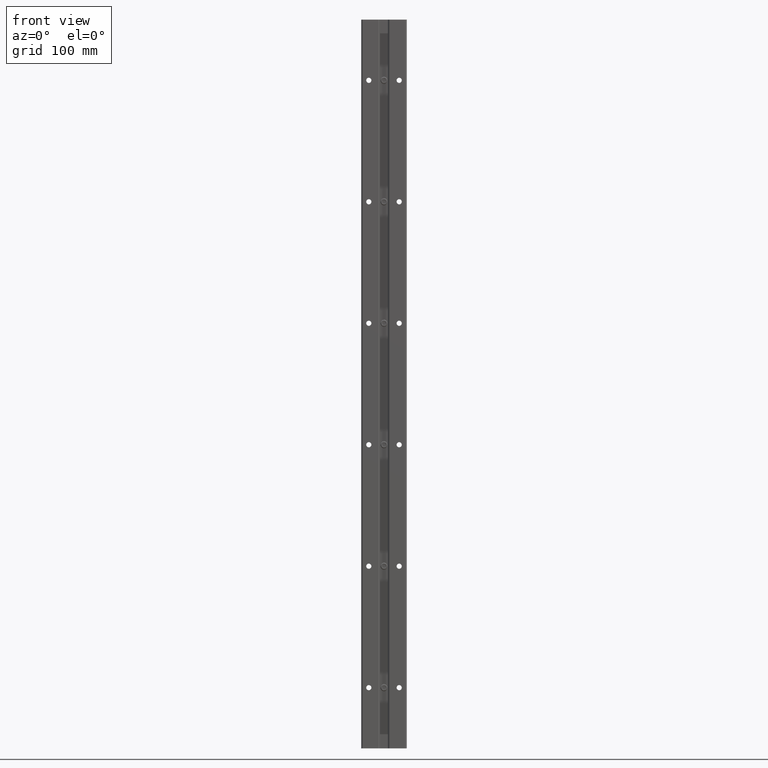
[diagram: clean part render]
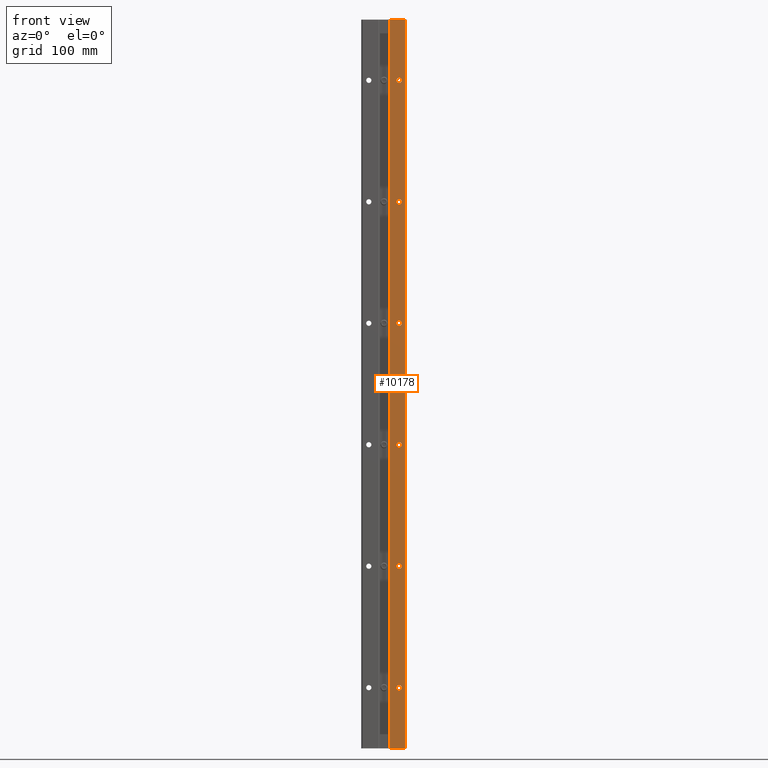
[diagram: same view with one face highlighted and labeled with its STEP entity id]
A machine part, front view. The second image highlights one B-rep face of the part: STEP entity #10178.
In plain terms, the highlighted planar face has unit normal (0, 1, 0).
Its self-contained STEP definition (entity closure, byte-faithful):
#1 = CIRCLE ( 'NONE', #2193, 0.08499999999999977018 ) ;
#10 = LINE ( 'NONE', #9737, #9622 ) ;
#162 = EDGE_CURVE ( 'NONE', #3149, #7738, #8929, .T. ) ;
#206 = ORIENTED_EDGE ( 'NONE', *, *, #7230, .T. ) ;
#217 = VECTOR ( 'NONE', #4765, 39.37007874015748143 ) ;
#227 = DIRECTION ( 'NONE',  ( -1.000000000000000000, 0.000000000000000000, 0.000000000000000000 ) ) ;
#417 = ORIENTED_EDGE ( 'NONE', *, *, #863, .T. ) ;
#542 = DIRECTION ( 'NONE',  ( 0.000000000000000000, 1.000000000000000000, 0.000000000000000000 ) ) ;
#607 = AXIS2_PLACEMENT_3D ( 'NONE', #9532, #9390, #11482 ) ;
#614 = EDGE_CURVE ( 'NONE', #5119, #6911, #9810, .T. ) ;
#631 = EDGE_LOOP ( 'NONE', ( #417, #9617 ) ) ;
#746 = FACE_BOUND ( 'NONE', #992, .T. ) ;
#863 = EDGE_CURVE ( 'NONE', #9808, #6351, #6385, .T. ) ;
#865 = VERTEX_POINT ( 'NONE', #1021 ) ;
#888 = CIRCLE ( 'NONE', #11783, 0.08500000000000086653 ) ;
#916 = CARTESIAN_POINT ( 'NONE',  ( 0.5000000000000000000, 0.000000000000000000, -2.084999999999999964 ) ) ;
#921 = CARTESIAN_POINT ( 'NONE',  ( 0.5000000000000000000, 0.000000000000000000, -10.08500000000000085 ) ) ;
#992 = EDGE_LOOP ( 'NONE', ( #13252, #9064 ) ) ;
#1021 = CARTESIAN_POINT ( 'NONE',  ( 0.5000000000000000000, 0.000000000000000000, -1.915000000000000036 ) ) ;
#1149 = DIRECTION ( 'NONE',  ( 0.000000000000000000, 1.000000000000000000, 0.000000000000000000 ) ) ;
#1203 = CIRCLE ( 'NONE', #11667, 0.08500000000000004774 ) ;
#1489 = CARTESIAN_POINT ( 'NONE',  ( -2.500000000000000000, 0.000000000000000000, 0.1250000000000000000 ) ) ;
#1981 = CIRCLE ( 'NONE', #9627, 0.08500000000000086653 ) ;
#2193 = AXIS2_PLACEMENT_3D ( 'NONE', #5148, #11463, #3048 ) ;
#2240 = CARTESIAN_POINT ( 'NONE',  ( 0.5000000000000000000, 0.000000000000000000, -22.00000000000000000 ) ) ;
#2301 = CARTESIAN_POINT ( 'NONE',  ( 0.5000000000000000000, 0.000000000000000000, -22.00000000000000000 ) ) ;
#2312 = CARTESIAN_POINT ( 'NONE',  ( 0.5000000000000000000, 0.000000000000000000, -17.91499999999999915 ) ) ;
#2335 = ORIENTED_EDGE ( 'NONE', *, *, #3913, .T. ) ;
#2414 = CARTESIAN_POINT ( 'NONE',  ( 0.1844203811574915142, 0.000000000000000000, -24.00000000000000355 ) ) ;
#2648 = VERTEX_POINT ( 'NONE', #3855 ) ;
#2658 = VERTEX_POINT ( 'NONE', #3175 ) ;
#2668 = CARTESIAN_POINT ( 'NONE',  ( 0.7005796188425083004, 0.000000000000000000, -25.75252057657289129 ) ) ;
#3048 = DIRECTION ( 'NONE',  ( 0.000000000000000000, 0.000000000000000000, 1.000000000000000000 ) ) ;
#3149 = VERTEX_POINT ( 'NONE', #7600 ) ;
#3158 = DIRECTION ( 'NONE',  ( 1.000000000000000000, 0.000000000000000000, 0.000000000000000000 ) ) ;
#3175 = CARTESIAN_POINT ( 'NONE',  ( 0.5000000000000000000, 0.000000000000000000, -5.915000000000000036 ) ) ;
#3228 = VERTEX_POINT ( 'NONE', #7253 ) ;
#3369 = DIRECTION ( 'NONE',  ( 0.000000000000000000, 0.000000000000000000, 1.000000000000000000 ) ) ;
#3584 = EDGE_CURVE ( 'NONE', #7400, #11096, #10384, .T. ) ;
#3619 = ORIENTED_EDGE ( 'NONE', *, *, #5487, .F. ) ;
#3667 = EDGE_CURVE ( 'NONE', #8734, #2658, #12100, .T. ) ;
#3855 = CARTESIAN_POINT ( 'NONE',  ( 0.5000000000000000000, 0.000000000000000000, -22.08500000000000085 ) ) ;
#3913 = EDGE_CURVE ( 'NONE', #865, #4217, #1203, .T. ) ;
#4136 = CARTESIAN_POINT ( 'NONE',  ( 0.5000000000000000000, 0.000000000000000000, -6.084999999999999076 ) ) ;
#4217 = VERTEX_POINT ( 'NONE', #916 ) ;
#4251 = CARTESIAN_POINT ( 'NONE',  ( 0.1844203811574827712, 1.485442346554943162E-15, 0.000000000000000000 ) ) ;
#4371 = EDGE_CURVE ( 'NONE', #6911, #8877, #10, .T. ) ;
#4446 = AXIS2_PLACEMENT_3D ( 'NONE', #1489, #542, #12009 ) ;
#4451 = DIRECTION ( 'NONE',  ( 0.000000000000000000, 0.000000000000000000, 1.000000000000000000 ) ) ;
#4534 = EDGE_CURVE ( 'NONE', #2658, #8734, #1, .T. ) ;
#4619 = DIRECTION ( 'NONE',  ( 0.000000000000000000, 1.000000000000000000, 0.000000000000000000 ) ) ;
#4670 = FACE_BOUND ( 'NONE', #631, .T. ) ;
#4723 = EDGE_CURVE ( 'NONE', #2648, #10550, #888, .T. ) ;
#4724 = FACE_BOUND ( 'NONE', #5179, .T. ) ;
#4765 = DIRECTION ( 'NONE',  ( 0.000000000000000000, 0.000000000000000000, 1.000000000000000000 ) ) ;
#4860 = DIRECTION ( 'NONE',  ( 0.000000000000000000, 0.000000000000000000, 1.000000000000000000 ) ) ;
#4866 = AXIS2_PLACEMENT_3D ( 'NONE', #13464, #5005, #7172 ) ;
#5005 = DIRECTION ( 'NONE',  ( 0.000000000000000000, 1.000000000000000000, 0.000000000000000000 ) ) ;
#5063 = DIRECTION ( 'NONE',  ( 0.000000000000000000, 1.000000000000000000, 0.000000000000000000 ) ) ;
#5119 = VERTEX_POINT ( 'NONE', #7748 ) ;
#5148 = CARTESIAN_POINT ( 'NONE',  ( 0.5000000000000000000, 0.000000000000000000, -5.999999999999999112 ) ) ;
#5179 = EDGE_LOOP ( 'NONE', ( #8544, #11356 ) ) ;
#5189 = CARTESIAN_POINT ( 'NONE',  ( 0.5000000000000000000, 0.000000000000000000, -21.91499999999999915 ) ) ;
#5220 = DIRECTION ( 'NONE',  ( 0.000000000000000000, 0.000000000000000000, 1.000000000000000000 ) ) ;
#5403 = DIRECTION ( 'NONE',  ( 0.000000000000000000, 0.000000000000000000, 1.000000000000000000 ) ) ;
#5487 = EDGE_CURVE ( 'NONE', #3228, #5119, #7628, .T. ) ;
#5495 = ORIENTED_EDGE ( 'NONE', *, *, #5661, .T. ) ;
#5528 = DIRECTION ( 'NONE',  ( 0.000000000000000000, 1.000000000000000000, 0.000000000000000000 ) ) ;
#5543 = DIRECTION ( 'NONE',  ( 0.000000000000000000, 1.000000000000000000, 0.000000000000000000 ) ) ;
#5615 = PLANE ( 'NONE',  #4446 ) ;
#5661 = EDGE_CURVE ( 'NONE', #3228, #8877, #7826, .T. ) ;
#5667 = CIRCLE ( 'NONE', #7039, 0.08500000000000086653 ) ;
#5690 = FACE_OUTER_BOUND ( 'NONE', #12433, .T. ) ;
#5715 = AXIS2_PLACEMENT_3D ( 'NONE', #12793, #5543, #5403 ) ;
#5784 = ORIENTED_EDGE ( 'NONE', *, *, #614, .F. ) ;
#5837 = FACE_BOUND ( 'NONE', #6634, .T. ) ;
#6278 = CARTESIAN_POINT ( 'NONE',  ( 0.5000000000000000000, 0.000000000000000000, -10.00000000000000000 ) ) ;
#6351 = VERTEX_POINT ( 'NONE', #7754 ) ;
#6385 = CIRCLE ( 'NONE', #8821, 0.08500000000000086653 ) ;
#6634 = EDGE_LOOP ( 'NONE', ( #206, #13067 ) ) ;
#6881 = DIRECTION ( 'NONE',  ( 0.000000000000000000, 0.000000000000000000, 1.000000000000000000 ) ) ;
#6911 = VERTEX_POINT ( 'NONE', #4251 ) ;
#6968 = FACE_BOUND ( 'NONE', #11508, .T. ) ;
#6985 = DIRECTION ( 'NONE',  ( 0.000000000000000000, 0.000000000000000000, 1.000000000000000000 ) ) ;
#7039 = AXIS2_PLACEMENT_3D ( 'NONE', #2301, #10652, #3369 ) ;
#7172 = DIRECTION ( 'NONE',  ( 0.000000000000000000, 0.000000000000000000, 1.000000000000000000 ) ) ;
#7230 = EDGE_CURVE ( 'NONE', #7738, #3149, #1981, .T. ) ;
#7253 = CARTESIAN_POINT ( 'NONE',  ( 0.7005796188425085225, 0.000000000000000000, -24.00000000000000355 ) ) ;
#7400 = VERTEX_POINT ( 'NONE', #2312 ) ;
#7459 = DIRECTION ( 'NONE',  ( 0.000000000000000000, 0.000000000000000000, 1.000000000000000000 ) ) ;
#7600 = CARTESIAN_POINT ( 'NONE',  ( 0.5000000000000000000, 0.000000000000000000, -13.91499999999999915 ) ) ;
#7628 = LINE ( 'NONE', #2414, #12468 ) ;
#7738 = VERTEX_POINT ( 'NONE', #13235 ) ;
#7748 = CARTESIAN_POINT ( 'NONE',  ( 0.1844203811574915142, 4.802076551362963074E-18, -24.00000000000000355 ) ) ;
#7754 = CARTESIAN_POINT ( 'NONE',  ( 0.5000000000000000000, 0.000000000000000000, -9.914999999999999147 ) ) ;
#7826 = LINE ( 'NONE', #2668, #217 ) ;
#7920 = FACE_BOUND ( 'NONE', #8297, .T. ) ;
#8027 = CIRCLE ( 'NONE', #607, 0.08500000000000086653 ) ;
#8091 = DIRECTION ( 'NONE',  ( 0.000000000000000000, 0.000000000000000000, 1.000000000000000000 ) ) ;
#8164 = ORIENTED_EDGE ( 'NONE', *, *, #9167, .T. ) ;
#8297 = EDGE_LOOP ( 'NONE', ( #8164, #2335 ) ) ;
#8418 = EDGE_CURVE ( 'NONE', #10550, #2648, #5667, .T. ) ;
#8491 = AXIS2_PLACEMENT_3D ( 'NONE', #11777, #5528, #6881 ) ;
#8544 = ORIENTED_EDGE ( 'NONE', *, *, #3667, .T. ) ;
#8687 = CARTESIAN_POINT ( 'NONE',  ( 0.5000000000000000000, 0.000000000000000000, -18.08500000000000085 ) ) ;
#8734 = VERTEX_POINT ( 'NONE', #4136 ) ;
#8744 = CARTESIAN_POINT ( 'NONE',  ( 0.1844203811574915142, 0.000000000000000000, -25.75252057657289129 ) ) ;
#8821 = AXIS2_PLACEMENT_3D ( 'NONE', #6278, #12357, #5220 ) ;
#8877 = VERTEX_POINT ( 'NONE', #10226 ) ;
#8929 = CIRCLE ( 'NONE', #8491, 0.08500000000000086653 ) ;
#9057 = AXIS2_PLACEMENT_3D ( 'NONE', #13241, #10193, #8091 ) ;
#9064 = ORIENTED_EDGE ( 'NONE', *, *, #3584, .T. ) ;
#9167 = EDGE_CURVE ( 'NONE', #4217, #865, #11622, .T. ) ;
#9277 = VECTOR ( 'NONE', #7459, 39.37007874015748143 ) ;
#9390 = DIRECTION ( 'NONE',  ( 0.000000000000000000, 1.000000000000000000, 0.000000000000000000 ) ) ;
#9532 = CARTESIAN_POINT ( 'NONE',  ( 0.5000000000000000000, 0.000000000000000000, -18.00000000000000000 ) ) ;
#9617 = ORIENTED_EDGE ( 'NONE', *, *, #13223, .T. ) ;
#9622 = VECTOR ( 'NONE', #3158, 39.37007874015748143 ) ;
#9627 = AXIS2_PLACEMENT_3D ( 'NONE', #12166, #4619, #6985 ) ;
#9709 = CIRCLE ( 'NONE', #11001, 0.08500000000000086653 ) ;
#9737 = CARTESIAN_POINT ( 'NONE',  ( -2.500000000000000000, 0.000000000000000000, 0.000000000000000000 ) ) ;
#9767 = ORIENTED_EDGE ( 'NONE', *, *, #4371, .F. ) ;
#9808 = VERTEX_POINT ( 'NONE', #921 ) ;
#9810 = LINE ( 'NONE', #8744, #9277 ) ;
#9921 = CARTESIAN_POINT ( 'NONE',  ( 0.5000000000000000000, 0.000000000000000000, -10.00000000000000000 ) ) ;
#10178 = ADVANCED_FACE ( 'NONE', ( #5837, #746, #4724, #4670, #6968, #7920, #5690 ), #5615, .F. ) ;
#10193 = DIRECTION ( 'NONE',  ( 0.000000000000000000, 1.000000000000000000, 0.000000000000000000 ) ) ;
#10226 = CARTESIAN_POINT ( 'NONE',  ( 0.7005796188425085225, 0.000000000000000000, 0.000000000000000000 ) ) ;
#10384 = CIRCLE ( 'NONE', #9057, 0.08500000000000086653 ) ;
#10550 = VERTEX_POINT ( 'NONE', #5189 ) ;
#10652 = DIRECTION ( 'NONE',  ( 0.000000000000000000, 1.000000000000000000, 0.000000000000000000 ) ) ;
#11001 = AXIS2_PLACEMENT_3D ( 'NONE', #9921, #12724, #12997 ) ;
#11096 = VERTEX_POINT ( 'NONE', #8687 ) ;
#11356 = ORIENTED_EDGE ( 'NONE', *, *, #4534, .T. ) ;
#11463 = DIRECTION ( 'NONE',  ( 0.000000000000000000, 1.000000000000000000, 0.000000000000000000 ) ) ;
#11482 = DIRECTION ( 'NONE',  ( 0.000000000000000000, 0.000000000000000000, 1.000000000000000000 ) ) ;
#11508 = EDGE_LOOP ( 'NONE', ( #12564, #11695 ) ) ;
#11622 = CIRCLE ( 'NONE', #5715, 0.08500000000000004774 ) ;
#11667 = AXIS2_PLACEMENT_3D ( 'NONE', #13391, #5063, #4860 ) ;
#11695 = ORIENTED_EDGE ( 'NONE', *, *, #8418, .T. ) ;
#11777 = CARTESIAN_POINT ( 'NONE',  ( 0.5000000000000000000, 0.000000000000000000, -14.00000000000000000 ) ) ;
#11783 = AXIS2_PLACEMENT_3D ( 'NONE', #2240, #1149, #4451 ) ;
#11953 = EDGE_CURVE ( 'NONE', #11096, #7400, #8027, .T. ) ;
#12009 = DIRECTION ( 'NONE',  ( 0.000000000000000000, -0.000000000000000000, 1.000000000000000000 ) ) ;
#12100 = CIRCLE ( 'NONE', #4866, 0.08499999999999977018 ) ;
#12166 = CARTESIAN_POINT ( 'NONE',  ( 0.5000000000000000000, 0.000000000000000000, -14.00000000000000000 ) ) ;
#12357 = DIRECTION ( 'NONE',  ( 0.000000000000000000, 1.000000000000000000, 0.000000000000000000 ) ) ;
#12433 = EDGE_LOOP ( 'NONE', ( #9767, #5784, #3619, #5495 ) ) ;
#12468 = VECTOR ( 'NONE', #227, 39.37007874015748143 ) ;
#12564 = ORIENTED_EDGE ( 'NONE', *, *, #4723, .T. ) ;
#12724 = DIRECTION ( 'NONE',  ( 0.000000000000000000, 1.000000000000000000, 0.000000000000000000 ) ) ;
#12793 = CARTESIAN_POINT ( 'NONE',  ( 0.5000000000000000000, 0.000000000000000000, -2.000000000000000000 ) ) ;
#12997 = DIRECTION ( 'NONE',  ( 0.000000000000000000, 0.000000000000000000, 1.000000000000000000 ) ) ;
#13067 = ORIENTED_EDGE ( 'NONE', *, *, #162, .T. ) ;
#13223 = EDGE_CURVE ( 'NONE', #6351, #9808, #9709, .T. ) ;
#13235 = CARTESIAN_POINT ( 'NONE',  ( 0.5000000000000000000, 0.000000000000000000, -14.08500000000000085 ) ) ;
#13241 = CARTESIAN_POINT ( 'NONE',  ( 0.5000000000000000000, 0.000000000000000000, -18.00000000000000000 ) ) ;
#13252 = ORIENTED_EDGE ( 'NONE', *, *, #11953, .T. ) ;
#13391 = CARTESIAN_POINT ( 'NONE',  ( 0.5000000000000000000, 0.000000000000000000, -2.000000000000000000 ) ) ;
#13464 = CARTESIAN_POINT ( 'NONE',  ( 0.5000000000000000000, 0.000000000000000000, -5.999999999999999112 ) ) ;